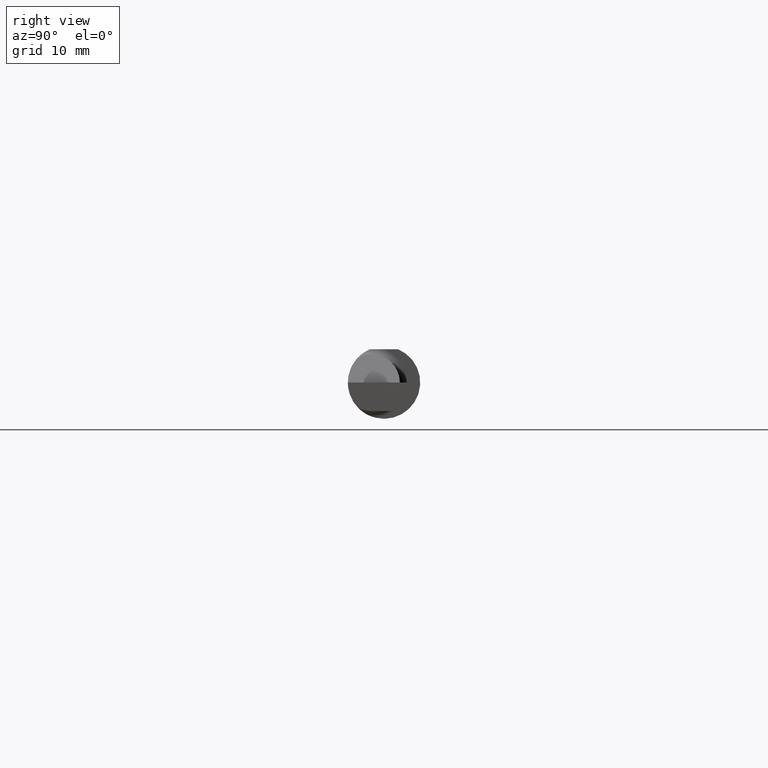
[diagram: clean part render]
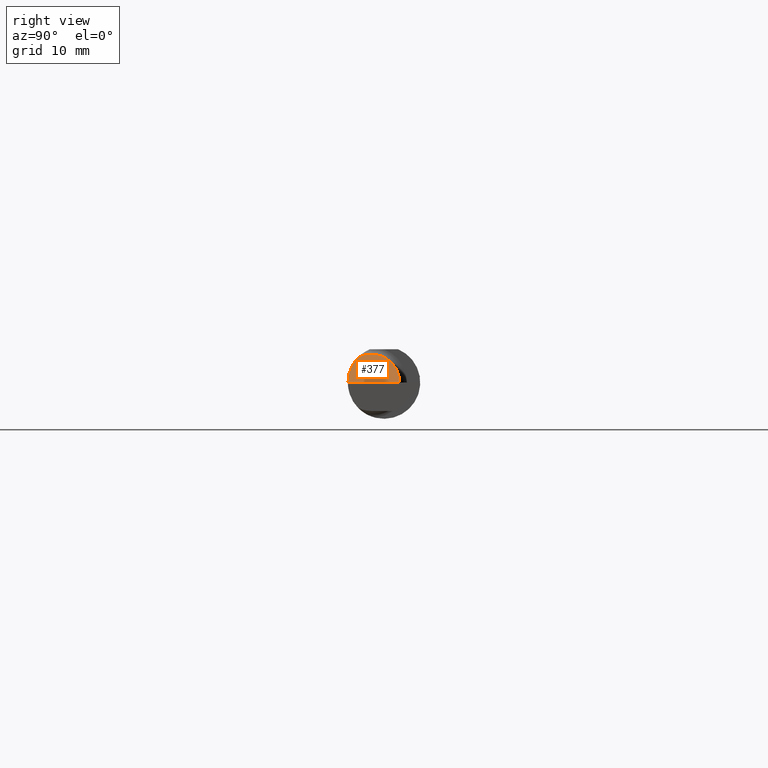
[diagram: same view with one face highlighted and labeled with its STEP entity id]
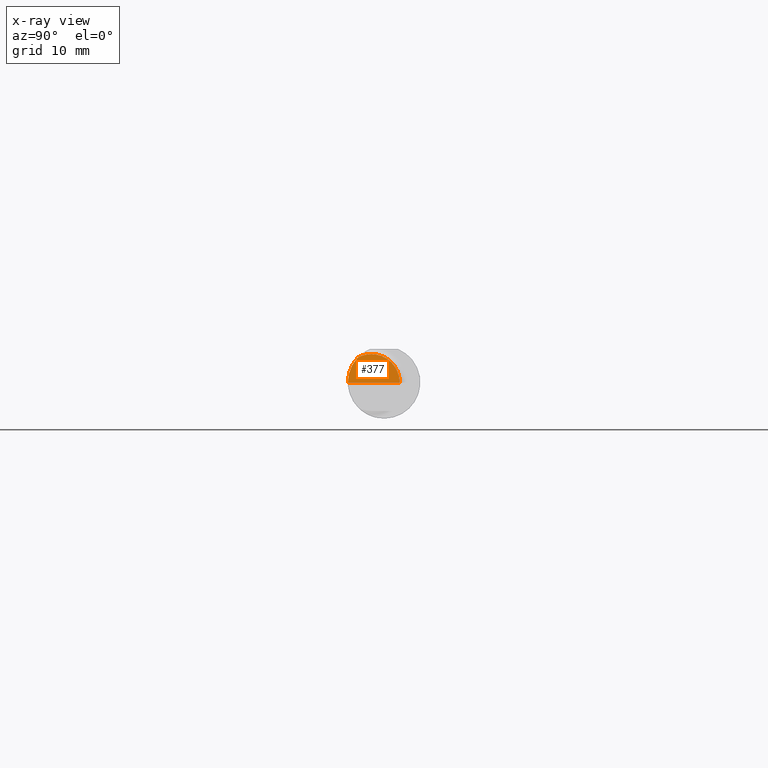
[diagram: x-ray of the same camera — body ghosted, the highlighted face saturated]
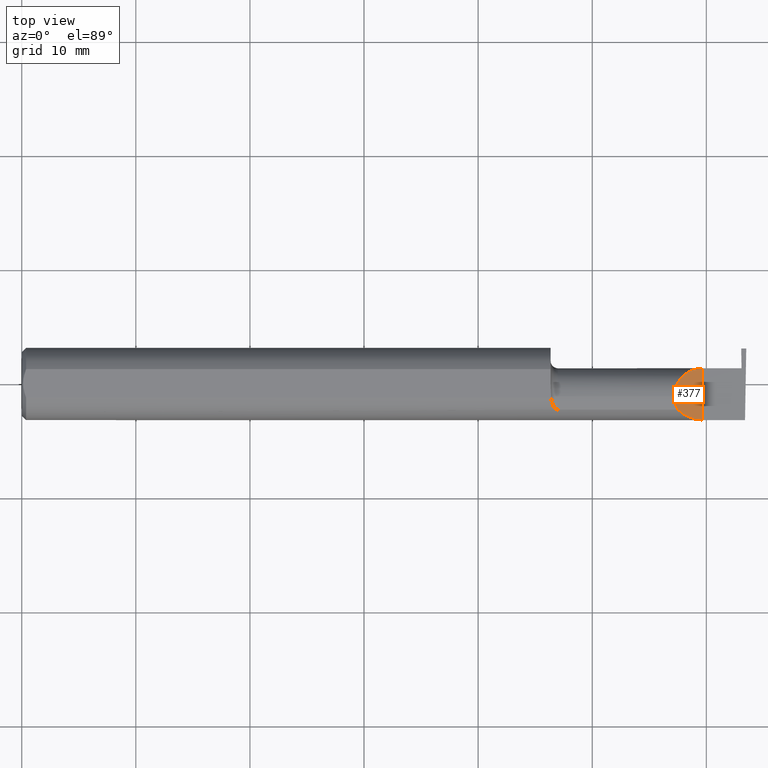
[diagram: same view with one face highlighted and labeled with its STEP entity id]
A machine part, right view. The second image highlights one B-rep face of the part: STEP entity #377.
The next image is the same camera in x-ray: the body ghosted, the highlighted face saturated — about 0% of this face is hidden behind the body in this view.
A second angle (top view) of the same face is appended — the face is thin or edge-on in the first view.
In plain terms, the highlighted planar face has unit normal (-0.7071, 0, -0.7071).
Its self-contained STEP definition (entity closure, byte-faithful):
#2 = DIRECTION ( 'NONE',  ( -0.000000000000000000, 1.000000000000000000, -0.000000000000000000 ) ) ;
#5 = CARTESIAN_POINT ( 'NONE',  ( 2.350000000000000089, -0.2000000000000000111, 1.836970198721028825E-17 ) ) ;
#61 = VERTEX_POINT ( 'NONE', #266 ) ;
#82 = CARTESIAN_POINT ( 'NONE',  ( 2.263628075281542529, -0.09015216647662421812, 0.08637192471845822617 ) ) ;
#83 = DIRECTION ( 'NONE',  ( -0.7071067811865492381, 0.000000000000000000, -0.7071067811865459074 ) ) ;
#88 = CARTESIAN_POINT ( 'NONE',  ( 2.252000000000000668, -0.04385000000000001397, 0.09800000000000000377 ) ) ;
#98 = EDGE_CURVE ( 'NONE', #368, #257, #753, .T. ) ;
#99 = CARTESIAN_POINT ( 'NONE',  ( 2.292592929112563738, 0.05415000000000004532, 0.05740707088743669112 ) ) ;
#170 = ORIENTED_EDGE ( 'NONE', *, *, #98, .F. ) ;
#181 = CARTESIAN_POINT ( 'NONE',  ( 2.252000000000000668, -0.04385000000000001397, 0.09800000000000000377 ) ) ;
#184 = ORIENTED_EDGE ( 'NONE', *, *, #265, .F. ) ;
#192 = CARTESIAN_POINT ( 'NONE',  ( 2.350000000000000089, -0.2000000000000000111, 1.836970198721028825E-17 ) ) ;
#235 = EDGE_CURVE ( 'NONE', #396, #368, #644, .T. ) ;
#244 = DIRECTION ( 'NONE',  ( -0.7071067811865459074, 0.000000000000000000, 0.7071067811865492381 ) ) ;
#254 = CARTESIAN_POINT ( 'NONE',  ( 2.252000000000000668, -0.06008937020638503712, 0.09799999999999998990 ) ) ;
#257 = VERTEX_POINT ( 'NONE', #776 ) ;
#265 = EDGE_CURVE ( 'NONE', #257, #61, #567, .T. ) ;
#266 = CARTESIAN_POINT ( 'NONE',  ( 2.350000000000000089, 0.05414999999999988572, 1.836970198721028825E-17 ) ) ;
#357 = ORIENTED_EDGE ( 'NONE', *, *, #757, .T. ) ;
#368 = VERTEX_POINT ( 'NONE', #439 ) ;
#375 = AXIS2_PLACEMENT_3D ( 'NONE', #5, #83, #244 ) ;
#377 = ADVANCED_FACE ( 'NONE', ( #745 ), #570, .F. ) ;
#396 = VERTEX_POINT ( 'NONE', #434 ) ;
#402 = CARTESIAN_POINT ( 'NONE',  ( 2.287163018370355072, -0.1127002472623169216, 0.06283698162964553025 ) ) ;
#412 = CARTESIAN_POINT ( 'NONE',  ( 2.350000000000000089, 0.05414999999999988572, 1.836970198721028825E-17 ) ) ;
#434 = CARTESIAN_POINT ( 'NONE',  ( 2.350000000000000089, -0.1248500000000000026, 1.836970198721028825E-17 ) ) ;
#439 = CARTESIAN_POINT ( 'NONE',  ( 2.263628075281542529, -0.09015216647662421812, 0.08637192471845822617 ) ) ;
#464 = CARTESIAN_POINT ( 'NONE',  ( 2.350000000000000089, -0.1248500000000000026, 1.836970198721028825E-17 ) ) ;
#517 = EDGE_LOOP ( 'NONE', ( #170, #718, #357, #184 ) ) ;
#567 =( BOUNDED_CURVE ( )  B_SPLINE_CURVE ( 3, ( #181, #721, #99, #412 ),
 .UNSPECIFIED., .F., .T. ) 
 B_SPLINE_CURVE_WITH_KNOTS ( ( 4, 4 ),
 ( 0.000000000000000000, 1.570796326794896558 ),
 .UNSPECIFIED. ) 
 CURVE ( )  GEOMETRIC_REPRESENTATION_ITEM ( )  RATIONAL_B_SPLINE_CURVE ( ( 1.000000000000000000, 0.8047378541243649375, 0.8047378541243649375, 1.000000000000000000 ) ) 
 REPRESENTATION_ITEM ( '' )  );
#570 = PLANE ( 'NONE',  #375 ) ;
#628 = CARTESIAN_POINT ( 'NONE',  ( 2.255955442396118560, -0.07583965973232772995, 0.09404455760388213958 ) ) ;
#644 =( BOUNDED_CURVE ( )  B_SPLINE_CURVE ( 3, ( #464, #723, #402, #656 ),
 .UNSPECIFIED., .F., .T. ) 
 B_SPLINE_CURVE_WITH_KNOTS ( ( 4, 4 ),
 ( 4.712388980384690562, 5.476375539154175520 ),
 .UNSPECIFIED. ) 
 CURVE ( )  GEOMETRIC_REPRESENTATION_ITEM ( )  RATIONAL_B_SPLINE_CURVE ( ( 1.000000000000000000, 0.9519489620492029847, 0.9519489620492029847, 1.000000000000000000 ) ) 
 REPRESENTATION_ITEM ( '' )  );
#656 = CARTESIAN_POINT ( 'NONE',  ( 2.263628075281542529, -0.09015216647662421812, 0.08637192471845822617 ) ) ;
#672 = LINE ( 'NONE', #192, #778 ) ;
#718 = ORIENTED_EDGE ( 'NONE', *, *, #235, .F. ) ;
#721 = CARTESIAN_POINT ( 'NONE',  ( 2.252000000000000668, 0.01355707088743670317, 0.09799999999999996214 ) ) ;
#723 = CARTESIAN_POINT ( 'NONE',  ( 2.317406910344188997, -0.1248500000000000304, 0.03259308965581166062 ) ) ;
#745 = FACE_OUTER_BOUND ( 'NONE', #517, .T. ) ;
#753 =( BOUNDED_CURVE ( )  B_SPLINE_CURVE ( 3, ( #82, #628, #254, #88 ),
 .UNSPECIFIED., .F., .T. ) 
 B_SPLINE_CURVE_WITH_KNOTS ( ( 4, 4 ),
 ( 5.791092865617133434, 6.283185307179586232 ),
 .UNSPECIFIED. ) 
 CURVE ( )  GEOMETRIC_REPRESENTATION_ITEM ( )  RATIONAL_B_SPLINE_CURVE ( ( 1.000000000000000000, 0.9799220177372784946, 0.9799220177372784946, 1.000000000000000000 ) ) 
 REPRESENTATION_ITEM ( '' )  );
#757 = EDGE_CURVE ( 'NONE', #396, #61, #672, .T. ) ;
#776 = CARTESIAN_POINT ( 'NONE',  ( 2.252000000000000668, -0.04385000000000001397, 0.09800000000000000377 ) ) ;
#778 = VECTOR ( 'NONE', #2, 39.37007874015748143 ) ;